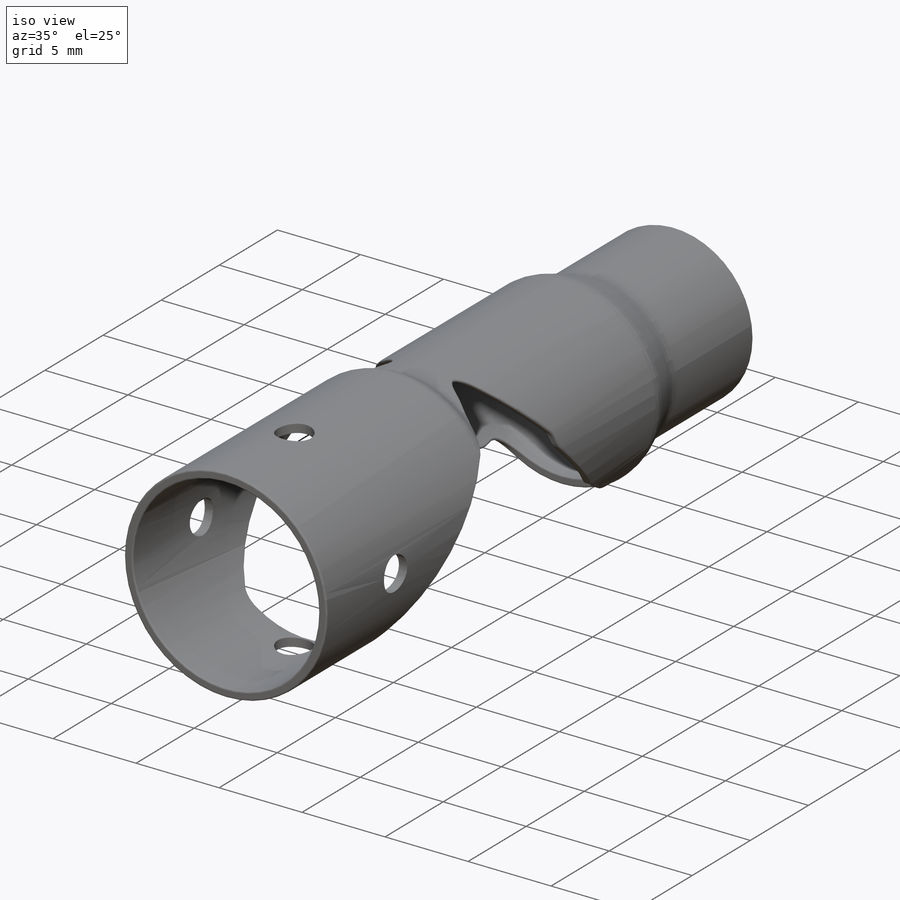
[diagram: iso view]
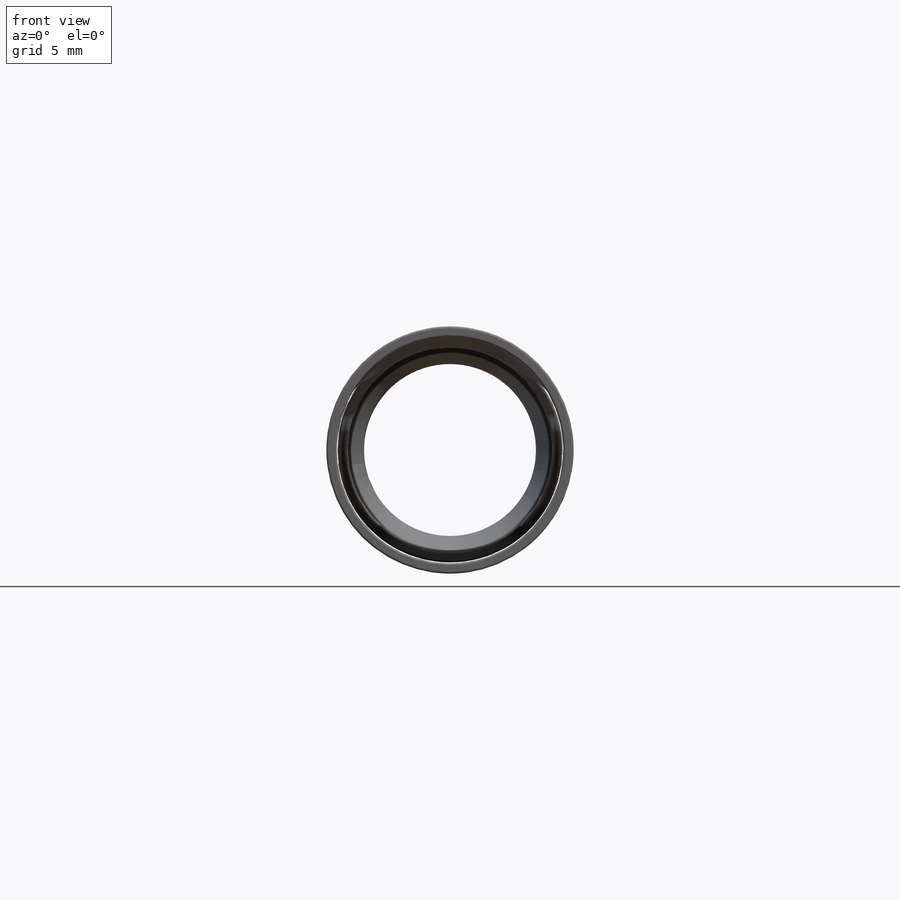
[diagram: front view]
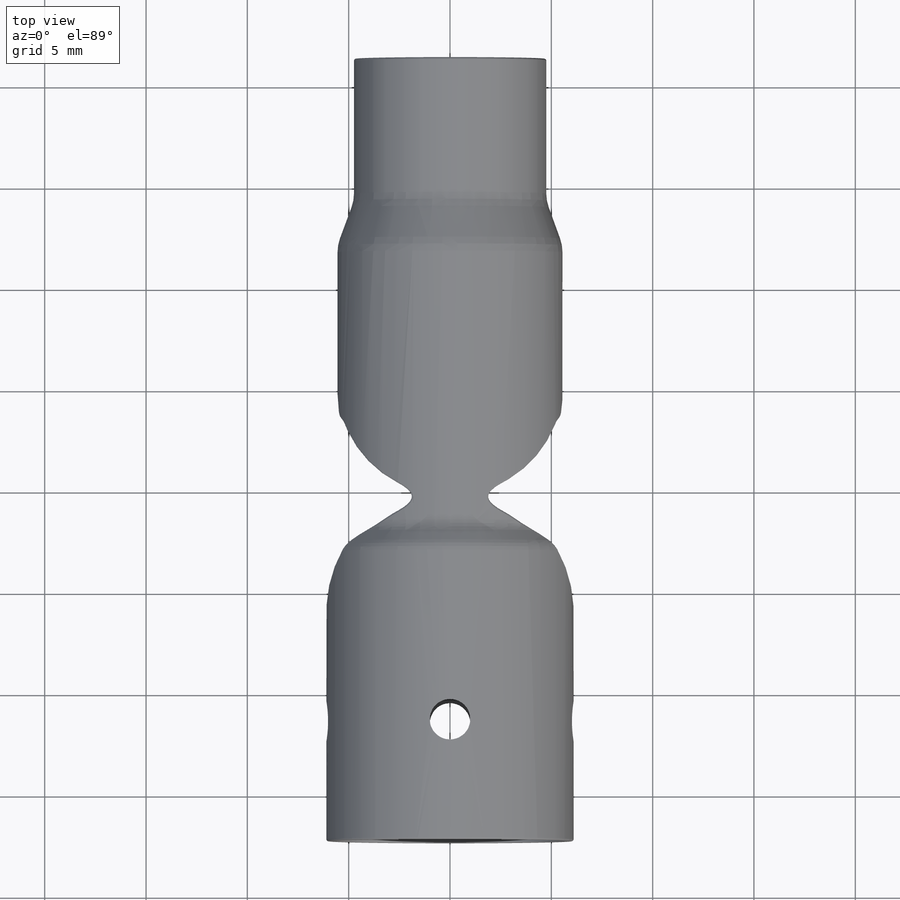
[diagram: top view]
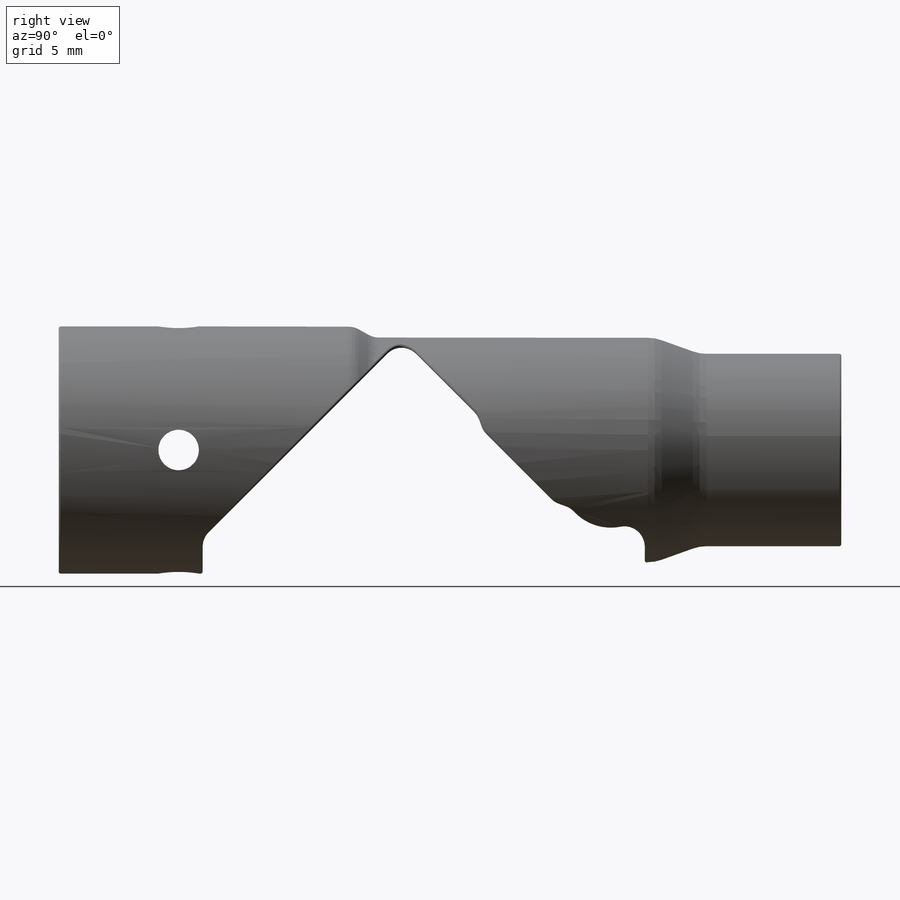
[diagram: right view]
SOLIDWORKS PART (.sldprt)
format: sldprt  version: not decoded by parser v0  size: 1,289,728 bytes
history: native  units: mm
features: sketch x11, fillet x9, plane x7, cut_extrude x6, revolve x3, pattern_circular x2, material x1, shell x1, cut_revolve x1, extrude x1 (+14 scaffold rows collapsed; 2 parser-record rows omitted)
feature tree (58):
  scaffold x14  (default folders/planes/origin — collapsed)
  material  "Material <nicht festgelegt>"
  sketch  "Sketch1"  dims[c1.D13=0.8mm c1.D14=0.5mm c1.D15=0.25mm c1.D3=0.8mm c1.D17=0.4mm c1.D18=0.4mm c1.D4=~0.408295mm c1.D5=~0.408295mm c1.D1=12.2mm c1.D2=12.4mm c2.D3=5.4mm c2.D4=2.5mm c2.D5=3.5mm c2.D6=7.0mm c2.D7=0.55mm c2.D8=13.3mm c2.D9=4.6mm c2.D10=5.0mm c2.D11=0.2mm c2.D12=1.2mm c2.D16=2.0mm c2.D17=5.4mm c2.D18=0.25mm c2.D19=5.4mm c3.D9=5.4mm c3.D10=0.2mm c3.D19=~0.542537mm c4.D19=~244.334677deg c5.D19=~0.12486mm c6.D19=~64.334677deg c7.D19=~0.330341mm c8.D19=25.0deg c8.D20=~0.545528mm c9.D20=~244.863845deg c10.D20=~0.197985mm c11.D20=65.0deg c12.D20=~0.197985mm c12.D2=6.1mm c12.D4=6.1mm c12.D3=6.1mm c12.D5=0.55mm c12.D11=0.8mm c12.D12=0.3mm c12.D13=~1.768792mm c12.D14=~0.841867mm c12.D15=~1.012029mm c12.D16=~1.182192mm c12.D17=8.0mm c13.D20=7.55mm c13.D6=~1.218792mm c13.D21=0.55mm c13.D22=6.5mm c13.D3=~0.383234mm c13.D7=~0.311852mm c14.D7=~103.662974deg c14.D8=~0.320934mm c14.D11=~0.311852mm c15.D11=~103.662974deg c15.D20=~0.320934mm c16.D20=~256.337026deg c16.D23=~0.320934mm c17.D23=~256.337026deg c17.D24=0.55mm c17.D3=~2.784218mm c17.D4=7.9377mm c17.D6=1.4mm c17.D7=11.1mm c18.D4=1.4mm c19.D4=~148.11863deg c20.D4=~5.653447mm c21.D4=~31.88137deg c22.D4=~5.653447mm c22.D3=12.2mm c23.D4=~8.437665mm c24.D4=30.0deg c24.D8=~19.621917mm c24.D9=6.4mm c24.D10=1.3mm]
  revolve  "Revolve1"  Angle=360deg
  fillet  "Fillet2"  Radius=0.2mm
  fillet  "Fillet3"  Radius=0.1mm
  plane  "Ebene2"  Offset=11mm
  shell  "Wandung2"  Thickness=0.5mm
  plane  "Ebene3"  Offset=8.9mm
  sketch  "Skizze2"  dims[D4=2.0mm D1=2.0mm D2=4.0mm D3=0.6mm D5=1.5mm D6=~0.281208mm]
  cut_extrude  "Schnitt-Linear austragen2"  Depth=10mm
  pattern_circular  "Kreismuster1"  Count=4 Angle=90deg
  parser-record x2  (decoder bookkeeping rows leaked as tree rows — omitted from the tree; the rows remain in map.json)
  sketch  "Sketch4"  dims[D1=2.2mm D2=7.2mm D3=1.2mm]
  cut_extrude  "Cut-Extrude1"  [1 undecoded]
  fillet  "Fillet7"  Radius=0.3mm
  pattern_circular  "CirPattern1"  Count=4 Angle=90deg
  sketch  "Sketch5"  dims[c1.D3=0.7mm c1.D1=0.2mm c1.D2=2.0mm c1.D5=0.1mm c1.D6=~1.835319mm c2.D1=5.7mm c2.D6=0.1mm c2.D4=0.25mm]
  revolve  "Revolve5"  Angle=360deg
  cut_revolve  "Cut-Revolve1"  [1 undecoded]
  sketch  "Sketch5<4>"  dims[D1=360.0deg]
  sketch  "Sketch6"
  cut_extrude  "Cut-Extrude2"  Depth=2mm
  fillet  "Fillet5"  Radius=0.4mm
  plane  "Ebene1"  Offset=11mm
  fillet  "Verrundung6"  Radius=1mm
  plane  "Ebene6"
  fillet  "Verrundung2"  Radius=0.05mm
  sketch  "Skizze1"
  cut_extrude  "Schnitt-Linear austragen1"  Depth=2.7mm
  fillet  "Verrundung3"  Radius=0.1mm
  plane  "Ebene4"  Offset=1.35mm
  sketch  "Skizze9"  dims[c1.D1=0.0mm c1.D2=0.0mm c2.D1=0.0mm c2.D2=0.0mm]
  extrude  "Aufsatz-Linear austragen3"  Depth=12.5mm
  sketch  "Skizze10"  dims[c1.D5=1.0mm c1.D8=1.0mm c1.D9=2.0mm c1.D11=1.0mm c1.D17=2.5mm c1.D12=1.0mm c1.D19=2.0mm c2.D9=1.0mm c2.D1=0.2mm c2.D2=~11.844859mm c3.D2=45.0deg c3.D3=~12.398168mm c4.D3=45.0deg c4.D4=2.0mm c4.D5=0.2mm c4.D1=5.0mm c5.D4=1.0mm c5.D5=9.7mm c6.D4=2.65mm c6.D6=8.4mm c6.D7=23.1mm c6.D8=1.0mm c7.D4=~2.678083mm c7.D5=~1.021917mm c7.D10=1.5mm c7.D12=1.5mm c8.D4=0.9mm c8.D13=0.35mm c8.D14=~0.660583mm c9.D14=155.0deg c9.D15=~0.290491mm c10.D15=155.0deg c10.D16=4.3mm c10.D18=4.2mm c10.D3=4.3mm c11.D3=45.0deg c11.D19=4.5253mm c11.D20=0.784mm c11.D17=1.5mm c11.D4=0.9mm]
  cut_extrude  "Schnitt-Linear austragen3"  Depth=10mm
  sketch  "Skizze11"  dims[c1.D1=9.5mm c1.D2=2.5mm c1.D3=6.1mm c1.D4=7.0mm c1.D5=0.5mm c2.D2=~0.610345mm c3.D2=20.0deg c3.D3=0.5mm]
  revolve  "Rotation2"  Angle=360deg
  fillet  "Verrundung4"  Radius=0.1mm
  fillet  "Verrundung5"  Radius=2mm
  plane  "Ebene7"  Offset=2mm
  plane  "Ebene8"  Offset=2mm
  sketch  "Skizze13"  dims[D1=1.5mm]
  cut_extrude  "Schnitt-Linear austragen4"  Depth=10mm
decode coverage: 30 of 34 modeling features carry decoded parameters
note: ~ marks probable driven/reference dimensions
note: 2 parameter values undecoded
note: suppression state not decoded; provenance and decode notes live in map.json
